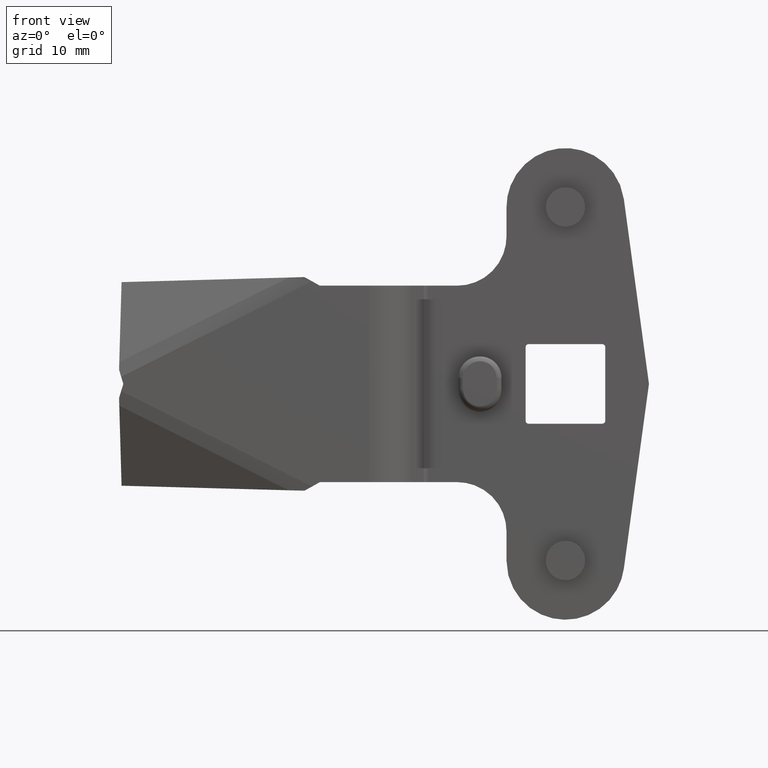
[diagram: clean part render]
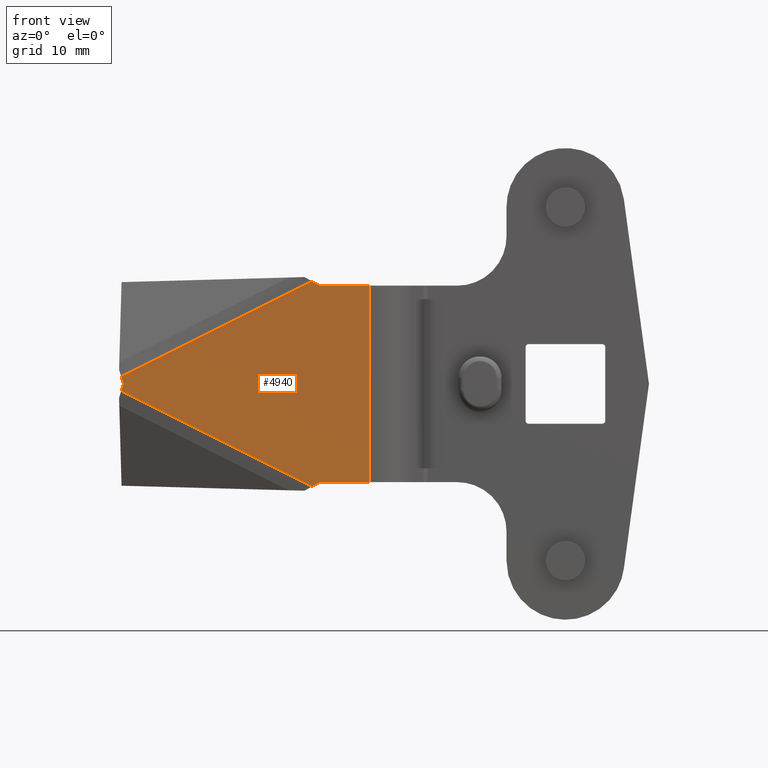
[diagram: same view with one face highlighted and labeled with its STEP entity id]
A machine part, front view. The second image highlights one B-rep face of the part: STEP entity #4940.
In plain terms, the highlighted face is a freeform B-spline surface patch.
Its self-contained STEP definition (entity closure, byte-faithful):
#2403=CARTESIAN_POINT('',(-20.000000798413350,-4.000000189999910,-10.000000474974440));
#2404=VERTEX_POINT('',#2403);
#2425=CARTESIAN_POINT('',(-20.000000798413350,-4.000000189999910,10.000000474974501));
#2426=VERTEX_POINT('',#2425);
#2440=CARTESIAN_POINT('',(-20.000000798413350,-4.000000189999910,-10.000000474974440));
#2441=CARTESIAN_POINT('',(-20.000000798413350,-4.000000189999910,10.000000474974501));
#2442=QUASI_UNIFORM_CURVE('',1,(#2440,#2441),.UNSPECIFIED.,.F.,.U.);
#2443=EDGE_CURVE('',#2404,#2426,#2442,.T.);
#3638=CARTESIAN_POINT('',(-45.219883041378900,-4.000000189999910,0.718892175585774));
#3639=VERTEX_POINT('',#3638);
#3647=CARTESIAN_POINT('',(-25.778134841934349,-4.000000189989805,10.439766275308980));
#3648=VERTEX_POINT('',#3647);
#3649=CARTESIAN_POINT('',(-25.778134841934349,-4.000000189989805,10.439766275308980));
#3650=CARTESIAN_POINT('',(-45.219883041378900,-4.000000189999910,0.718892175585774));
#3651=QUASI_UNIFORM_CURVE('',1,(#3649,#3650),.UNSPECIFIED.,.F.,.U.);
#3652=EDGE_CURVE('',#3648,#3639,#3651,.T.);
#3717=CARTESIAN_POINT('',(-25.778134841934399,-4.000000189989805,-10.439766275308941));
#3718=VERTEX_POINT('',#3717);
#3726=CARTESIAN_POINT('',(-45.219883041378900,-4.000000189989805,-0.718892175585774));
#3727=VERTEX_POINT('',#3726);
#3728=CARTESIAN_POINT('',(-45.219883041378900,-4.000000189989805,-0.718892175585774));
#3729=CARTESIAN_POINT('',(-25.778134841934399,-4.000000189989805,-10.439766275308941));
#3730=QUASI_UNIFORM_CURVE('',1,(#3728,#3729),.UNSPECIFIED.,.F.,.U.);
#3731=EDGE_CURVE('',#3727,#3718,#3730,.T.);
#3829=CARTESIAN_POINT('',(-25.000001187438599,-4.000000189989805,10.000000474974501));
#3830=VERTEX_POINT('',#3829);
#3831=CARTESIAN_POINT('',(-25.000001187438649,-4.000000189989805,10.000000474974440));
#3832=CARTESIAN_POINT('',(-25.387302428985763,-4.000000189989805,10.223007450849037));
#3833=CARTESIAN_POINT('',(-25.778134841934389,-4.000000189989805,10.439766275308930));
#3841=(BOUNDED_CURVE()B_SPLINE_CURVE(2,(#3831,#3832,#3833),.UNSPECIFIED.,.F.,.U.)CURVE()GEOMETRIC_REPRESENTATION_ITEM()QUASI_UNIFORM_CURVE()RATIONAL_B_SPLINE_CURVE((1.0,0.999967763810750,1.0))REPRESENTATION_ITEM(''));
#3842=EDGE_CURVE('',#3830,#3648,#3841,.T.);
#4104=CARTESIAN_POINT('',(-45.000002137386900,-4.000000189989805,-2.629008E-013));
#4105=VERTEX_POINT('',#4104);
#4106=CARTESIAN_POINT('',(-45.219883041378822,-4.000000189989805,-0.718892175585864));
#4107=CARTESIAN_POINT('',(-45.110977010921076,-4.000000189989805,-0.359129698839111));
#4108=CARTESIAN_POINT('',(-45.000002137386822,-4.000000189989805,-3.330669E-013));
#4116=(BOUNDED_CURVE()B_SPLINE_CURVE(2,(#4106,#4107,#4108),.UNSPECIFIED.,.F.,.U.)CURVE()GEOMETRIC_REPRESENTATION_ITEM()QUASI_UNIFORM_CURVE()RATIONAL_B_SPLINE_CURVE((1.0,0.999995859098558,1.0))REPRESENTATION_ITEM(''));
#4117=EDGE_CURVE('',#3727,#4105,#4116,.T.);
#4143=CARTESIAN_POINT('',(-45.219883041378822,-4.000000189999910,0.718892175585864));
#4144=CARTESIAN_POINT('',(-45.110977010921410,-4.000000189999910,0.359129698840249));
#4145=CARTESIAN_POINT('',(-45.000002137386900,-4.000000189989805,-2.629008E-013));
#4153=(BOUNDED_CURVE()B_SPLINE_CURVE(2,(#4143,#4144,#4145),.UNSPECIFIED.,.F.,.U.)CURVE()GEOMETRIC_REPRESENTATION_ITEM()QUASI_UNIFORM_CURVE()RATIONAL_B_SPLINE_CURVE((1.0,0.999995859098557,1.0))REPRESENTATION_ITEM(''));
#4154=EDGE_CURVE('',#3639,#4105,#4153,.T.);
#4178=CARTESIAN_POINT('',(-25.000001187438599,-4.000000189989805,-10.000000474974440));
#4179=VERTEX_POINT('',#4178);
#4180=CARTESIAN_POINT('',(-25.778134841934431,-4.000000189989805,-10.439766275308900));
#4181=CARTESIAN_POINT('',(-25.387302428985521,-4.000000189989805,-10.223007450848836));
#4182=CARTESIAN_POINT('',(-25.000001187438631,-4.000000189989805,-10.000000474974380));
#4190=(BOUNDED_CURVE()B_SPLINE_CURVE(2,(#4180,#4181,#4182),.UNSPECIFIED.,.F.,.U.)CURVE()GEOMETRIC_REPRESENTATION_ITEM()QUASI_UNIFORM_CURVE()RATIONAL_B_SPLINE_CURVE((1.0,0.999967763810750,1.0))REPRESENTATION_ITEM(''));
#4191=EDGE_CURVE('',#3718,#4179,#4190,.T.);
#4903=CARTESIAN_POINT('',(-20.000000798413350,-4.000000189999910,10.000000474974501));
#4904=CARTESIAN_POINT('',(-25.000001187438599,-4.000000189989805,10.000000474974501));
#4905=QUASI_UNIFORM_CURVE('',1,(#4903,#4904),.UNSPECIFIED.,.F.,.U.);
#4906=EDGE_CURVE('',#2426,#3830,#4905,.T.);
#4920=CARTESIAN_POINT('',(-46.479616110534003,-4.000000189999915,11.482698419143180));
#4921=CARTESIAN_POINT('',(-18.740267052808289,-4.000000189999915,11.482698419143180));
#4922=CARTESIAN_POINT('',(-46.479616110534003,-4.000000189999915,-11.482697859110431));
#4923=CARTESIAN_POINT('',(-18.740267052808289,-4.000000189999915,-11.482697859110440));
#4924=B_SPLINE_SURFACE_WITH_KNOTS('',1,1,((#4920,#4922),(#4921,#4923)),.UNSPECIFIED.,.F.,.F.,.U.,(2,2),(2,2),(0.0,27.739349057725711),(0.0,22.965396278253611),.UNSPECIFIED.);
#4925=CARTESIAN_POINT('',(-25.000001187438599,-4.000000189989805,-10.000000474974440));
#4926=CARTESIAN_POINT('',(-20.000000798413350,-4.000000189999910,-10.000000474974440));
#4927=QUASI_UNIFORM_CURVE('',1,(#4925,#4926),.UNSPECIFIED.,.F.,.U.);
#4928=EDGE_CURVE('',#4179,#2404,#4927,.T.);
#4929=ORIENTED_EDGE('',*,*,#4928,.T.);
#4930=ORIENTED_EDGE('',*,*,#2443,.T.);
#4931=ORIENTED_EDGE('',*,*,#4906,.T.);
#4932=ORIENTED_EDGE('',*,*,#3842,.T.);
#4933=ORIENTED_EDGE('',*,*,#3652,.T.);
#4934=ORIENTED_EDGE('',*,*,#4154,.T.);
#4935=ORIENTED_EDGE('',*,*,#4117,.F.);
#4936=ORIENTED_EDGE('',*,*,#3731,.T.);
#4937=ORIENTED_EDGE('',*,*,#4191,.T.);
#4938=EDGE_LOOP('',(#4929,#4930,#4931,#4932,#4933,#4934,#4935,#4936,#4937));
#4939=FACE_OUTER_BOUND('',#4938,.T.);
#4940=ADVANCED_FACE('',(#4939),#4924,.F.);